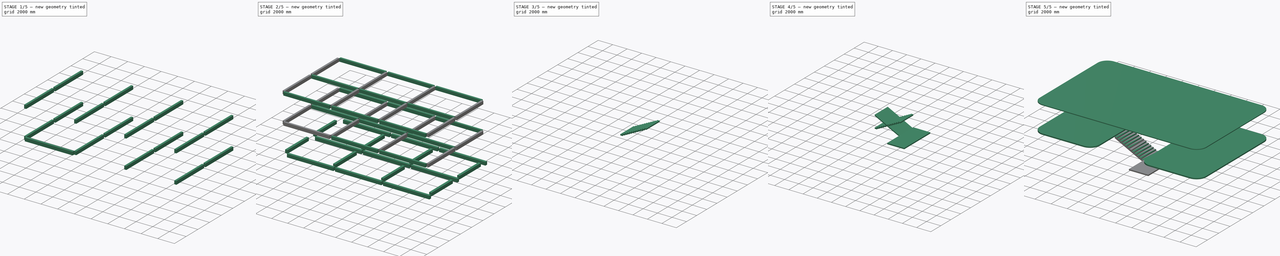
[diagram: build sequence overview — one tinted view per stage of 5, left to right]
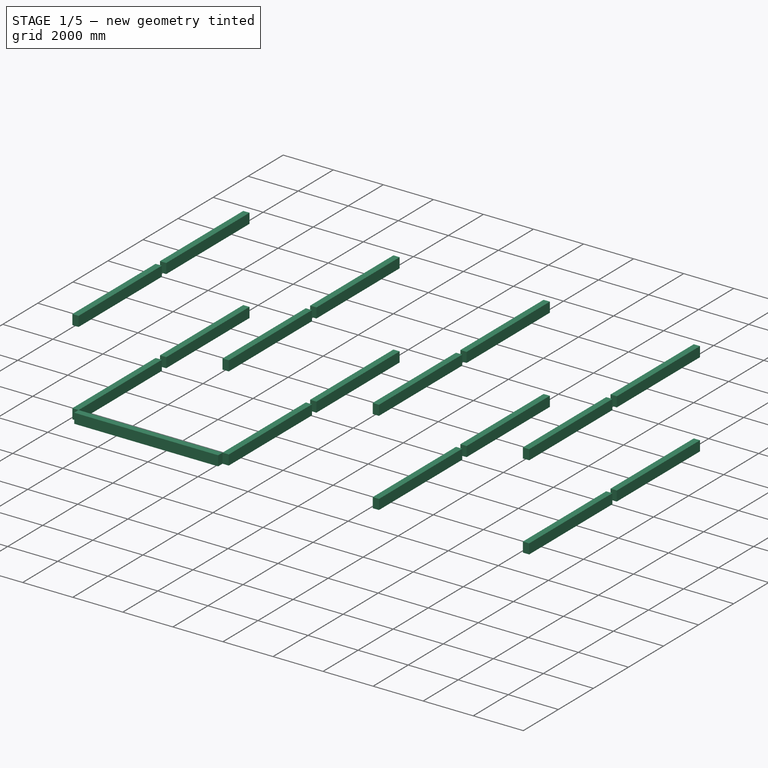
[diagram: stage 1 of 5 — iso view after this stage's code; geometry added in this stage tinted green]
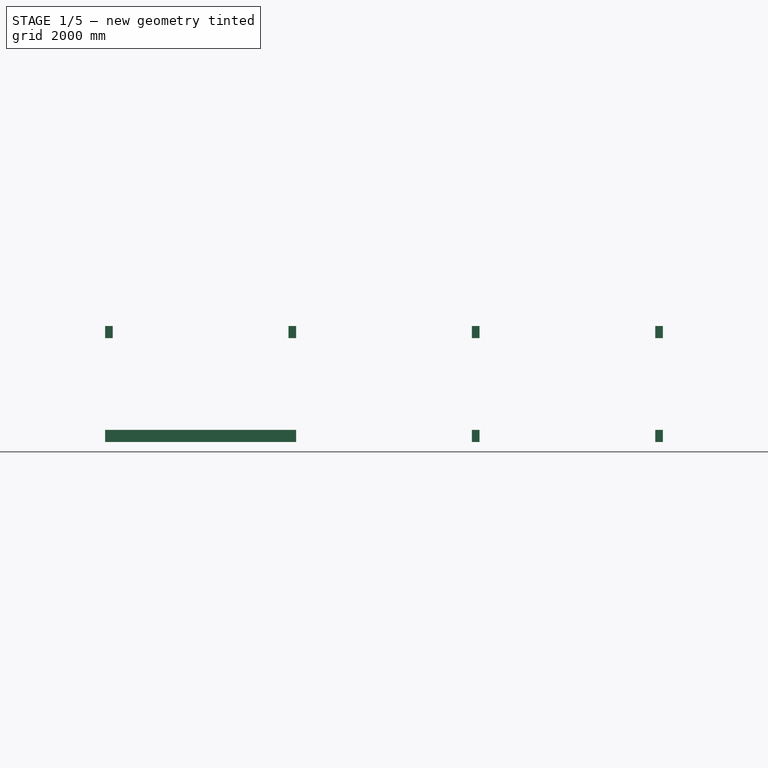
[diagram: stage 1 of 5 — front view after this stage's code; geometry added in this stage tinted green]
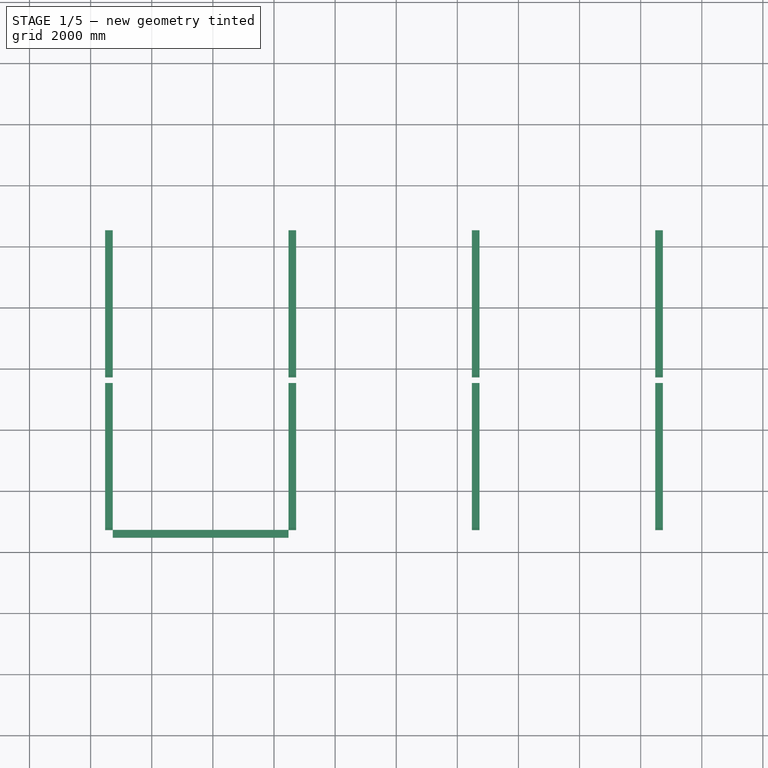
[diagram: stage 1 of 5 — top view after this stage's code; geometry added in this stage tinted green]
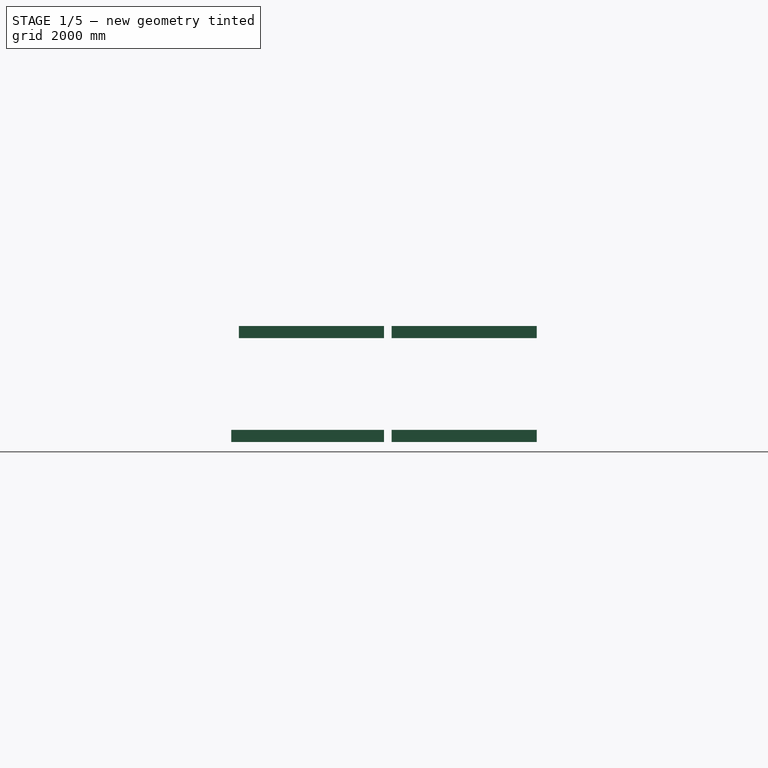
[diagram: stage 1 of 5 — right view after this stage's code; geometry added in this stage tinted green]
FCSTD DOCUMENT  (FreeCAD 0.16R6712 (Git))
Label: DOMINO_HOUSE_03
License: All rights reserved
LicenseURL: http://en.wikipedia.org/wiki/All_rights_reserved
objects: Sketcher::SketchObject×11, Part::Extrusion×11, Part::FeaturePython×7, Part::Mirroring×4, PartDesign::Fillet×2, Part::MultiFuse×1
note: 36 computed .brp shape members not serialized (recipe doc carries the construction recipe); baked Part::Feature solids carry a one-line shape summary decoded from their .brp

FEATURE [Sketcher::SketchObject] Sketch  label="BLOCO"
  sketch-geometry (4):
    g0: LineSegment StartX=0 StartY=0 StartZ=0 EndX=1200 EndY=0 EndZ=0
    g1: LineSegment StartX=1200 StartY=0 StartZ=0 EndX=1200 EndY=1200 EndZ=0
    g2: LineSegment StartX=1200 StartY=1200 StartZ=0 EndX=0 EndY=1200 EndZ=0
    g3: LineSegment StartX=0 StartY=1200 StartZ=0 EndX=0 EndY=0 EndZ=0
  constraints (11):
    c: Coincident(g0,g1)
    c: Coincident(g1,g2)
    c: Coincident(g2,g3)
    c: Coincident(g3,g0)
    c: Horizontal(g0)
    c: Horizontal(g2)
    c: Vertical(g1)
    c: Vertical(g3)
    c: Coincident(g0,g-1)
    c: Equal(g3,g0)
    c: Distance(g0) = 1200
FEATURE [Part::Extrusion] Extrude_Sketch  label="BLOCO_Extrude"
  Base = -> Sketch
  Dir = (0,0,400)
  Solid = true
FEATURE [Sketcher::SketchObject] Sketch001  label="PILAR"
  ExternalGeometry = -> [Extrude_Sketch]
  Placement = pos=(0,0,400) rot=(0,0,1;0rad)
  Support = -> Extrude_Sketch [Face6]
  sketch-geometry (6):
    g0: LineSegment StartX=475 StartY=725 StartZ=0 EndX=725 EndY=725 EndZ=0
    g1: LineSegment StartX=725 StartY=725 StartZ=0 EndX=725 EndY=475 EndZ=0
    g2: LineSegment StartX=725 StartY=475 StartZ=0 EndX=475 EndY=475 EndZ=0
    g3: LineSegment StartX=475 StartY=475 StartZ=0 EndX=475 EndY=725 EndZ=0
    g4: Circle [constr] CenterX=600 CenterY=600 CenterZ=0 NormalX=0 NormalY=0 NormalZ=1 Radius=125
    g5: Circle [constr] CenterX=600 CenterY=600 CenterZ=0 NormalX=0 NormalY=0 NormalZ=1 Radius=600
  constraints (17):
    c: Coincident(g0,g1)
    c: Coincident(g1,g2)
    c: Coincident(g2,g3)
    c: Coincident(g3,g0)
    c: Horizontal(g0)
    c: Horizontal(g2)
    c: Vertical(g1)
    c: Vertical(g3)
    c: Equal(g2,g3)
    c: Distance(g2) = 250
    c: Coincident(g4,g5)
    c: Tangent(g4,g3)
    c: Tangent(g4,g2)
    c: Tangent(g4,g0)
    c: Tangent(g5,g-3)
    c: Tangent(g5,g-4)
    c: Tangent(g5,g-5)
FEATURE [Part::Extrusion] Extrude_Sketch001  label="PILAR_Extrude"
  Base = -> Sketch001
  Dir = (0,0,6850)
  Solid = true
FEATURE [Part::Extrusion] Extrude_Sketch003  label="VIGA-X_Extrude"
  Base = -> Sketch003
  Dir = (5750,0,0)
  Solid = true
FEATURE [Part::Extrusion] Extrude_Sketch004  label="VIGA-Y_Extrude"
  Base = -> Sketch004
  Dir = (0,4750,0)
  Solid = true
FEATURE [Part::FeaturePython] Array005  label="VIGA-Y001"  # Draft array (typed FeaturePython)
  Angle = 360
  ArrayType = 0
  Axis = (0,0,1)
  Base = -> Extrude_Sketch004
  Center = (0,0,0)
  Fuse = false
  IntervalAxis = (0,0,0)
  IntervalX = (6000,0,0)
  IntervalY = (0,5000,0)
  IntervalZ = (0,0,3400)
  NumberPolar = 1
  NumberX = 4
  NumberY = 2
  NumberZ = 2
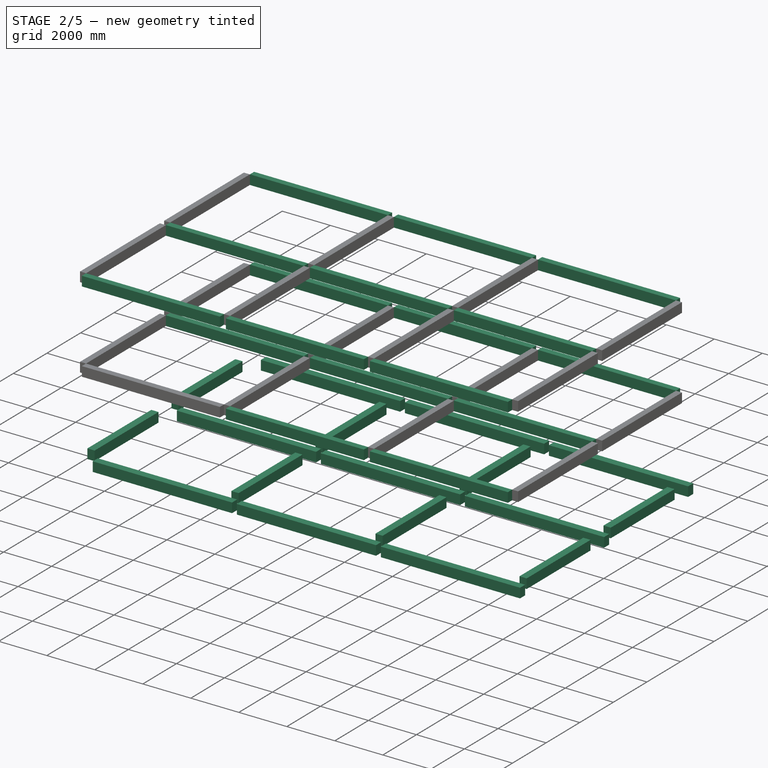
[diagram: stage 2 of 5 — iso view after this stage's code; geometry added in this stage tinted green]
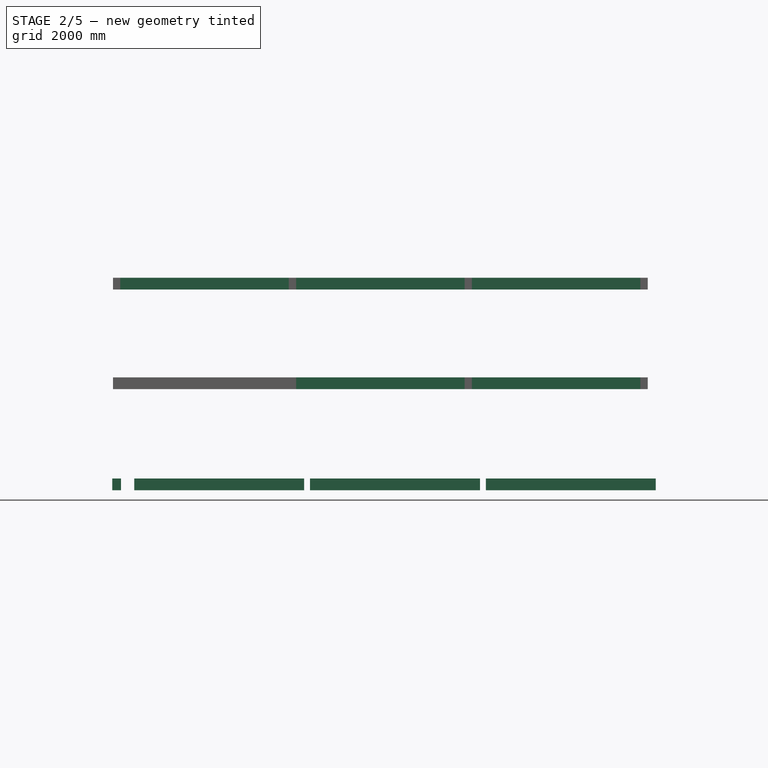
[diagram: stage 2 of 5 — front view after this stage's code; geometry added in this stage tinted green]
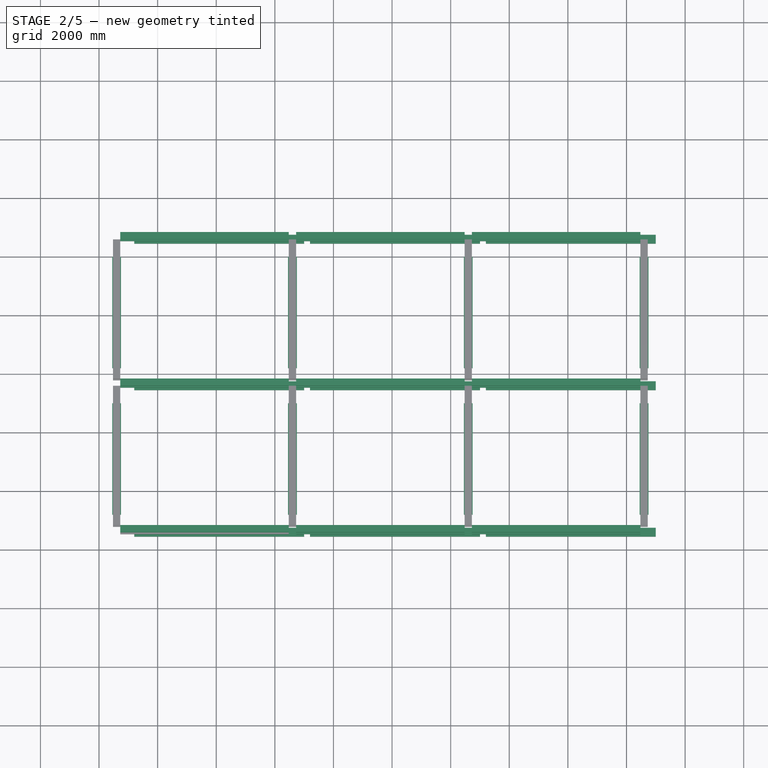
[diagram: stage 2 of 5 — top view after this stage's code; geometry added in this stage tinted green]
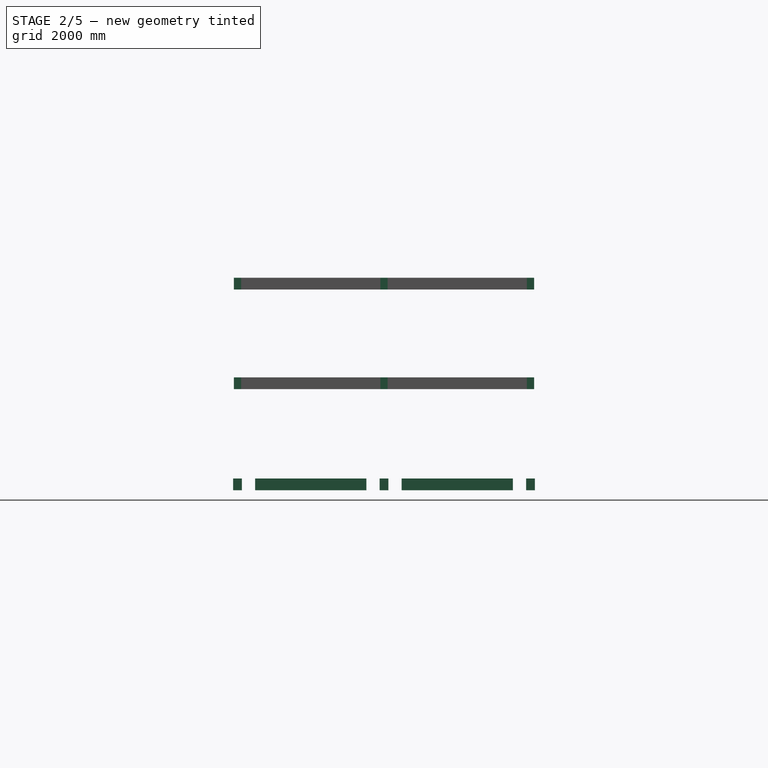
[diagram: stage 2 of 5 — right view after this stage's code; geometry added in this stage tinted green]
FEATURE [Sketcher::SketchObject] Sketch004  label="VIGA-Y"
  ExternalGeometry = -> [Extrude_Sketch001]
  Placement = pos=(0,725,0) rot=(0,0.707107,0.707107;3.14159rad)
  Support = -> Extrude_Sketch001 [Face1]
  sketch-geometry (5):
    g0: LineSegment StartX=-725 StartY=3850 StartZ=0 EndX=-475 EndY=3850 EndZ=0
    g1: LineSegment StartX=-475 StartY=3850 StartZ=0 EndX=-475 EndY=3450 EndZ=0
    g2: LineSegment StartX=-475 StartY=3450 StartZ=0 EndX=-725 EndY=3450 EndZ=0
    g3: LineSegment StartX=-725 StartY=3450 StartZ=0 EndX=-725 EndY=3850 EndZ=0
    g4: LineSegment [constr] StartX=-600 StartY=3450 StartZ=0 EndX=-600 EndY=400 EndZ=0
  constraints (14):
    c: Coincident(g0,g1)
    c: Coincident(g1,g2)
    c: Coincident(g2,g3)
    c: Coincident(g3,g0)
    c: Horizontal(g0)
    c: Horizontal(g2)
    c: Vertical(g1)
    c: Vertical(g3)
    c: Vertical(g4)
    c: Symmetric(g2,g2,g4)
    c: Symmetric(g-3,g-3,g4)
    c: Distance(g4) = 3050
    c: Equal(g0,g-4)
    c: Distance(g3) = 400
FEATURE [Sketcher::SketchObject] Sketch005  label="BALDRAME-Y"
  ExternalGeometry = -> [Extrude_Sketch]
  Placement = pos=(0,1200,0) rot=(0,0.707107,0.707107;3.14159rad)
  Support = -> Extrude_Sketch [Face3]
  sketch-geometry (6):
    g0: LineSegment StartX=-750 StartY=400 StartZ=0 EndX=-450 EndY=400 EndZ=0
    g1: LineSegment StartX=-450 StartY=400 StartZ=0 EndX=-450 EndY=0 EndZ=0
    g2: LineSegment StartX=-450 StartY=0 StartZ=0 EndX=-750 EndY=0 EndZ=0
    g3: LineSegment StartX=-750 StartY=0 StartZ=0 EndX=-750 EndY=400 EndZ=0
    g4: LineSegment [constr] StartX=-1200 StartY=200 StartZ=0 EndX=-750 EndY=200 EndZ=0
    g5: LineSegment [constr] StartX=-450 StartY=200 StartZ=0 EndX=0 EndY=200 EndZ=0
  constraints (17):
    c: Coincident(g0,g1)
    c: Coincident(g1,g2)
    c: Coincident(g2,g3)
    c: Coincident(g3,g0)
    c: Horizontal(g0)
    c: Horizontal(g2)
    c: Vertical(g1)
    c: Vertical(g3)
    c: Horizontal(g4)
    c: Horizontal(g5)
    c: Equal(g5,g4)
    c: Symmetric(g3,g3,g4)
    c: Symmetric(g1,g1,g5)
    c: Symmetric(g-6,g-6,g5)
    c: Distance(g0,g0) = 300
    c: Symmetric(g-4,g-4,g4)
    c: Equal(g-4,g3)
FEATURE [Part::Extrusion] Extrude_Sketch002  label="BALDRAME-X_Extrude"
  Base = -> Sketch002
  Dir = (5800,0,0)
  Solid = true
FEATURE [Part::Extrusion] Extrude_Sketch005  label="BALDRAME-Y_Extrude"
  Base = -> Sketch005
  Dir = (0,3800,0)
  Solid = true
FEATURE [Part::FeaturePython] Array002  label="BALDRAME-X001"  # Draft array (typed FeaturePython)
  Angle = 360
  ArrayType = 0
  Axis = (0,0,1)
  Base = -> Extrude_Sketch002
  Center = (0,0,0)
  Fuse = true
  IntervalAxis = (0,0,0)
  IntervalX = (6000,0,0)
  IntervalY = (0,5000,0)
  IntervalZ = (0,0,0)
  NumberPolar = 1
  NumberX = 3
  NumberY = 3
  NumberZ = 1
FEATURE [Part::FeaturePython] Array003  label="BALDRAME-Y001"  # Draft array (typed FeaturePython)
  Angle = 360
  ArrayType = 0
  Axis = (0,0,1)
  Base = -> Extrude_Sketch005
  Center = (0,0,0)
  Fuse = true
  IntervalAxis = (0,0,0)
  IntervalX = (6000,0,0)
  IntervalY = (0,5000,0)
  IntervalZ = (0,0,0)
  NumberPolar = 1
  NumberX = 4
  NumberY = 2
  NumberZ = 1
FEATURE [Part::FeaturePython] Array004  label="VIGA-X001"  # Draft array (typed FeaturePython)
  Angle = 360
  ArrayType = 0
  Axis = (0,0,1)
  Base = -> Extrude_Sketch003
  Center = (0,0,0)
  Fuse = false
  IntervalAxis = (0,0,0)
  IntervalX = (6000,0,0)
  IntervalY = (0,5000,0)
  IntervalZ = (0,0,3400)
  NumberPolar = 1
  NumberX = 3
  NumberY = 3
  NumberZ = 2
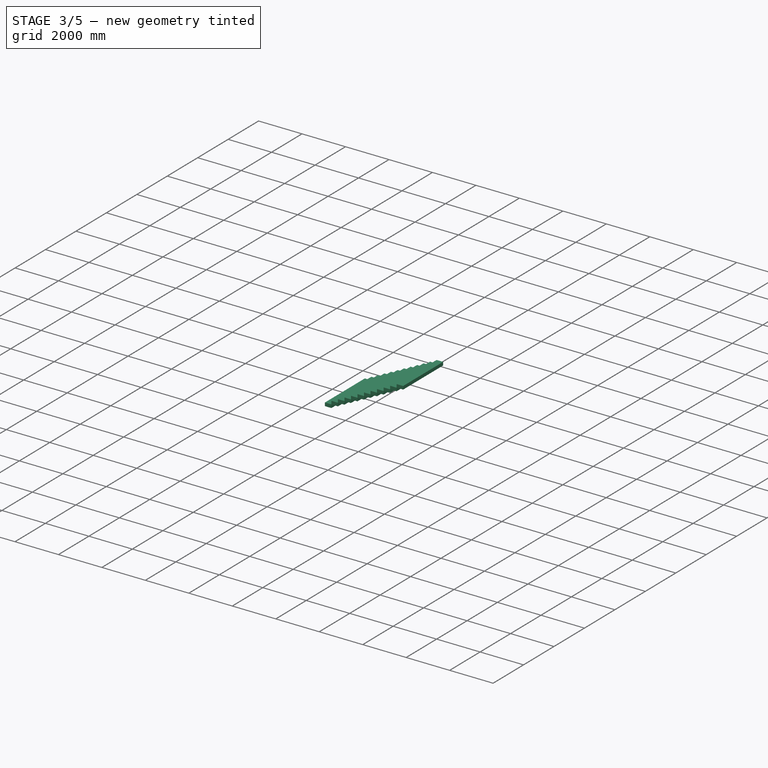
[diagram: stage 3 of 5 — iso view after this stage's code; geometry added in this stage tinted green]
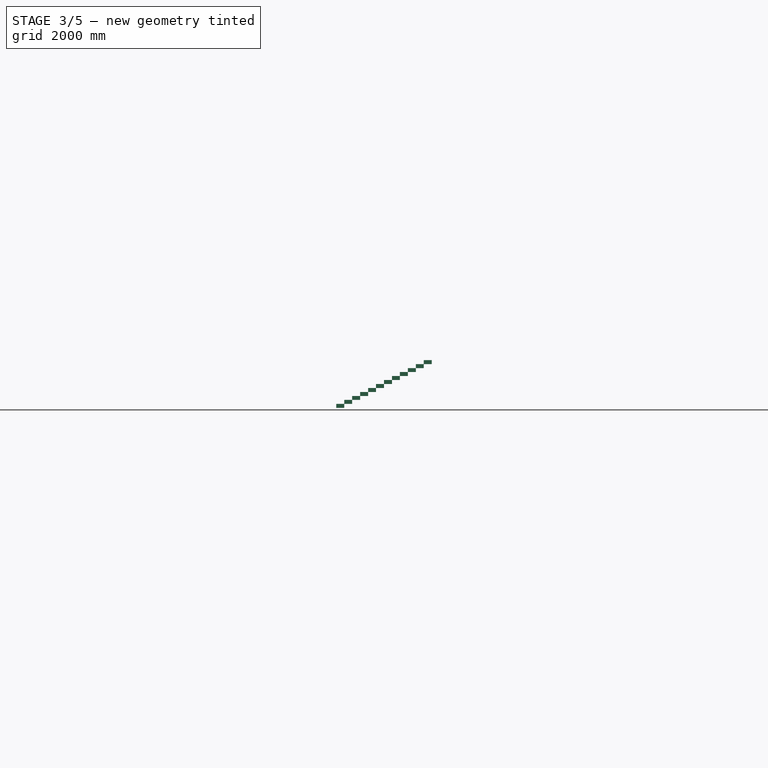
[diagram: stage 3 of 5 — front view after this stage's code; geometry added in this stage tinted green]
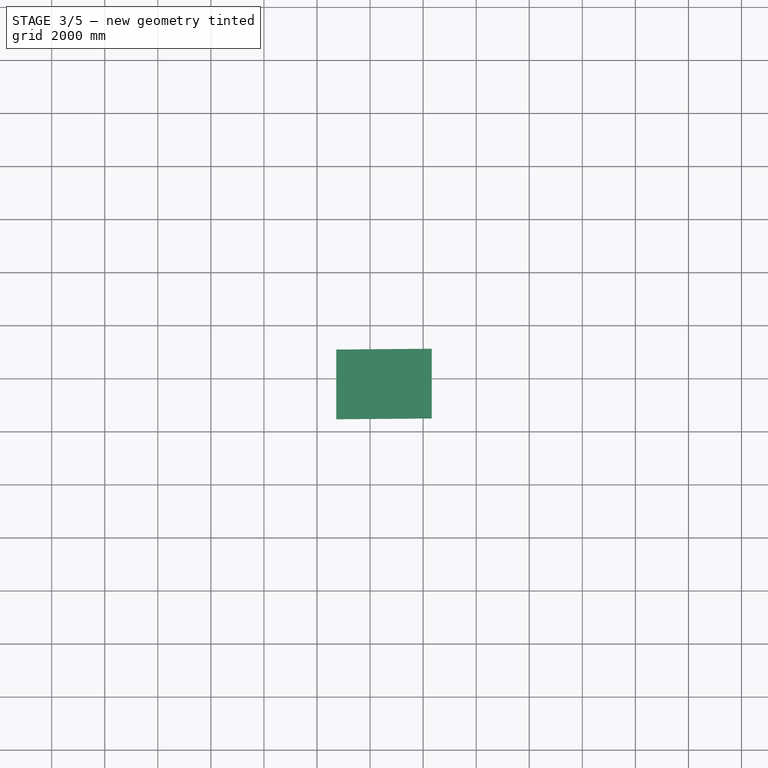
[diagram: stage 3 of 5 — top view after this stage's code; geometry added in this stage tinted green]
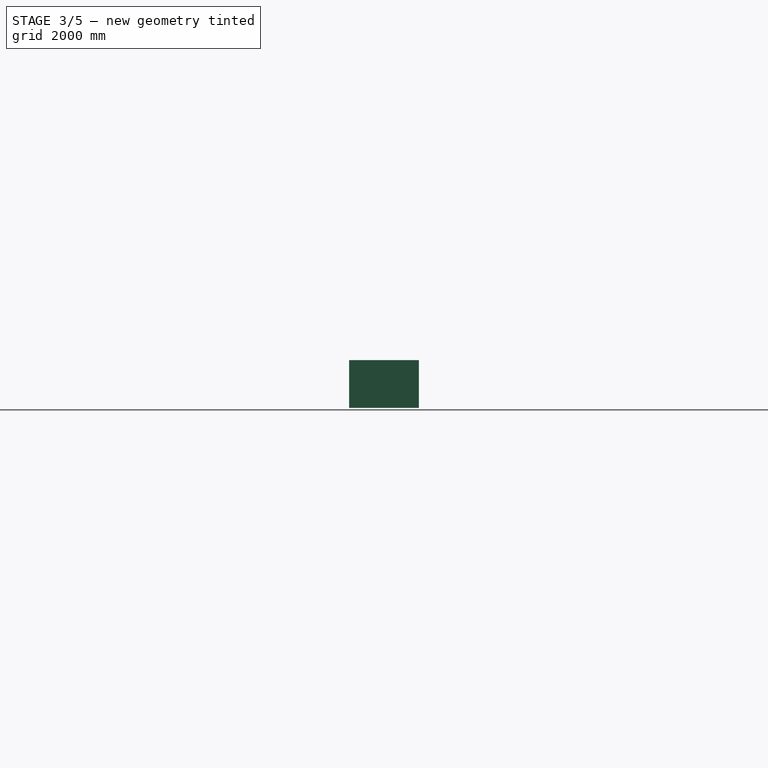
[diagram: stage 3 of 5 — right view after this stage's code; geometry added in this stage tinted green]
FEATURE [Sketcher::SketchObject] Sketch002  label="BALDRAME-X"
  ExternalGeometry = -> [Extrude_Sketch]
  Placement = pos=(1200,0,0) rot=(0.57735,0.57735,0.57735;2.0944rad)
  Support = -> Extrude_Sketch [Face2]
  sketch-geometry (6):
    g0: LineSegment StartX=450 StartY=400 StartZ=0 EndX=750 EndY=400 EndZ=0
    g1: LineSegment StartX=750 StartY=400 StartZ=0 EndX=750 EndY=0 EndZ=0
    g2: LineSegment StartX=750 StartY=0 StartZ=0 EndX=450 EndY=0 EndZ=0
    g3: LineSegment StartX=450 StartY=0 StartZ=0 EndX=450 EndY=400 EndZ=0
    g4: LineSegment [constr] StartX=0 StartY=200 StartZ=0 EndX=450 EndY=200 EndZ=0
    g5: LineSegment [constr] StartX=750 StartY=200 StartZ=0 EndX=1200 EndY=200 EndZ=0
  constraints (16):
    c: Coincident(g0,g1)
    c: Coincident(g1,g2)
    c: Coincident(g2,g3)
    c: Coincident(g3,g0)
    c: Horizontal(g0)
    c: Horizontal(g2)
    c: Vertical(g1)
    c: Vertical(g3)
    c: Distance(g0) = 300
    c: Equal(g-4,g3)
    c: Equal(g5,g4)
    c: Symmetric(g-4,g-4,g4)
    c: Symmetric(g3,g3,g4)
    c: Symmetric(g1,g1,g5)
    c: Symmetric(g-6,g-6,g5)
    c: Horizontal(g4)
FEATURE [Sketcher::SketchObject] Sketch003  label="VIGA-X"
  ExternalGeometry = -> [Extrude_Sketch001]
  Placement = pos=(725,0,0) rot=(0.57735,0.57735,0.57735;2.0944rad)
  Support = -> Extrude_Sketch001 [Face2]
  sketch-geometry (5):
    g0: LineSegment StartX=475 StartY=3850 StartZ=0 EndX=725 EndY=3850 EndZ=0
    g1: LineSegment StartX=725 StartY=3850 StartZ=0 EndX=725 EndY=3450 EndZ=0
    g2: LineSegment StartX=725 StartY=3450 StartZ=0 EndX=475 EndY=3450 EndZ=0
    g3: LineSegment StartX=475 StartY=3450 StartZ=0 EndX=475 EndY=3850 EndZ=0
    g4: LineSegment [constr] StartX=600 StartY=3450 StartZ=0 EndX=600 EndY=400 EndZ=0
  constraints (14):
    c: Coincident(g0,g1)
    c: Coincident(g1,g2)
    c: Coincident(g2,g3)
    c: Coincident(g3,g0)
    c: Horizontal(g0)
    c: Horizontal(g2)
    c: Vertical(g1)
    c: Vertical(g3)
    c: Equal(g0,g-3)
    c: Vertical(g4)
    c: Symmetric(g-4,g-4,g4)
    c: Symmetric(g2,g2,g4)
    c: Distance(g4) = 3050
    c: Distance(g3) = 400
FEATURE [Part::FeaturePython] Array  label="BLOCO001"  # Draft array (typed FeaturePython)
  Angle = 360
  ArrayType = 0
  Axis = (0,0,1)
  Base = -> Extrude_Sketch
  Center = (0,0,0)
  Fuse = true
  IntervalAxis = (0,0,0)
  IntervalX = (6000,0,0)
  IntervalY = (0,5000,0)
  IntervalZ = (0,0,0)
  NumberPolar = 1
  NumberX = 4
  NumberY = 3
  NumberZ = 1
FEATURE [Part::FeaturePython] Array001  label="PILAR001"  # Draft array (typed FeaturePython)
  Angle = 360
  ArrayType = 0
  Axis = (0,0,1)
  Base = -> Extrude_Sketch001
  Center = (0,0,0)
  Fuse = true
  IntervalAxis = (0,0,0)
  IntervalX = (6000,0,0)
  IntervalY = (0,5000,0)
  IntervalZ = (0,0,0)
  NumberPolar = 1
  NumberX = 4
  NumberY = 3
  NumberZ = 1
FEATURE [Part::MultiFuse] Fusion  label="ESTRUTURA"
  Shapes = -> [Array,Array005,Array004,Array002,Array001,Array003]
FEATURE [Sketcher::SketchObject] Sketch008  label="DEGRAU"
  ExternalGeometry = -> [Fusion]
  Placement = pos=(0,475,0) rot=(1,0,0;1.5708rad)
  Support = -> Fusion [Face289]
  sketch-geometry (4):
    g0: LineSegment StartX=6725 StartY=400 StartZ=0 EndX=7025 EndY=400 EndZ=0
    g1: LineSegment StartX=7025 StartY=400 StartZ=0 EndX=7025 EndY=550 EndZ=0
    g2: LineSegment StartX=7025 StartY=550 StartZ=0 EndX=6725 EndY=550 EndZ=0
    g3: LineSegment StartX=6725 StartY=550 StartZ=0 EndX=6725 EndY=400 EndZ=0
  constraints (11):
    c: Coincident(g0,g1)
    c: Coincident(g1,g2)
    c: Coincident(g2,g3)
    c: Coincident(g3,g0)
    c: Horizontal(g0)
    c: Horizontal(g2)
    c: Vertical(g1)
    c: Vertical(g3)
    c: Distance(g3) = 150
    c: Distance(g2) = 300
    c: Coincident(g0,g-3)
FEATURE [Part::Extrusion] Extrude_Sketch008  label="DEGRAU001"
  Base = -> Sketch008
  Dir = (0,2625,0)
  Solid = true
FEATURE [Part::FeaturePython] Array006  label="ESCADA"  # Draft array (typed FeaturePython)
  Angle = 360
  ArrayType = 0
  Axis = (0,0,1)
  Base = -> Extrude_Sketch008
  Center = (0,0,0)
  Fuse = true
  IntervalAxis = (0,0,0)
  IntervalX = (300,0,150)
  IntervalY = (0,1,0)
  IntervalZ = (0,0,0)
  NumberPolar = 1
  NumberX = 12
  NumberY = 2
  NumberZ = 1
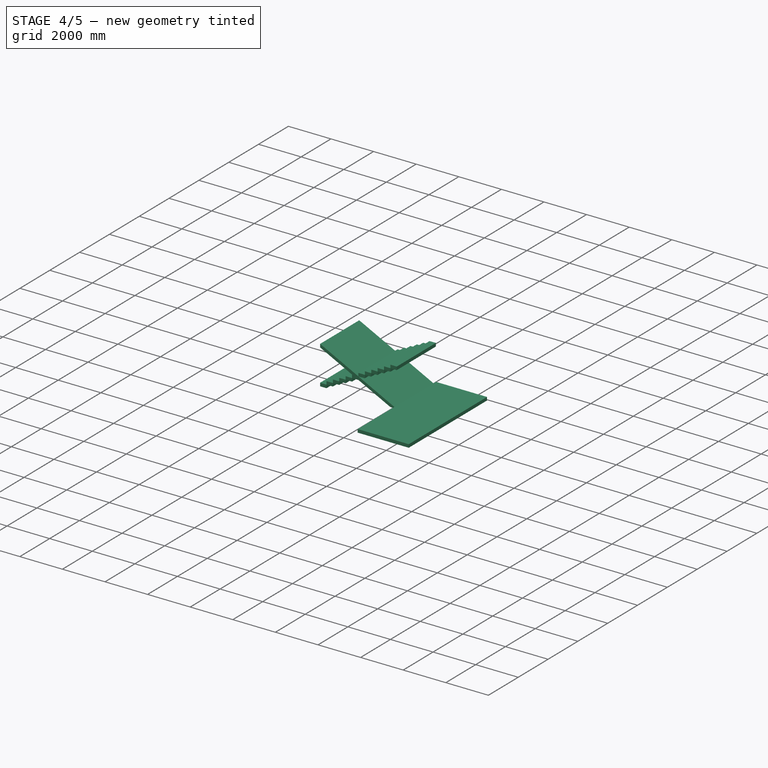
[diagram: stage 4 of 5 — iso view after this stage's code; geometry added in this stage tinted green]
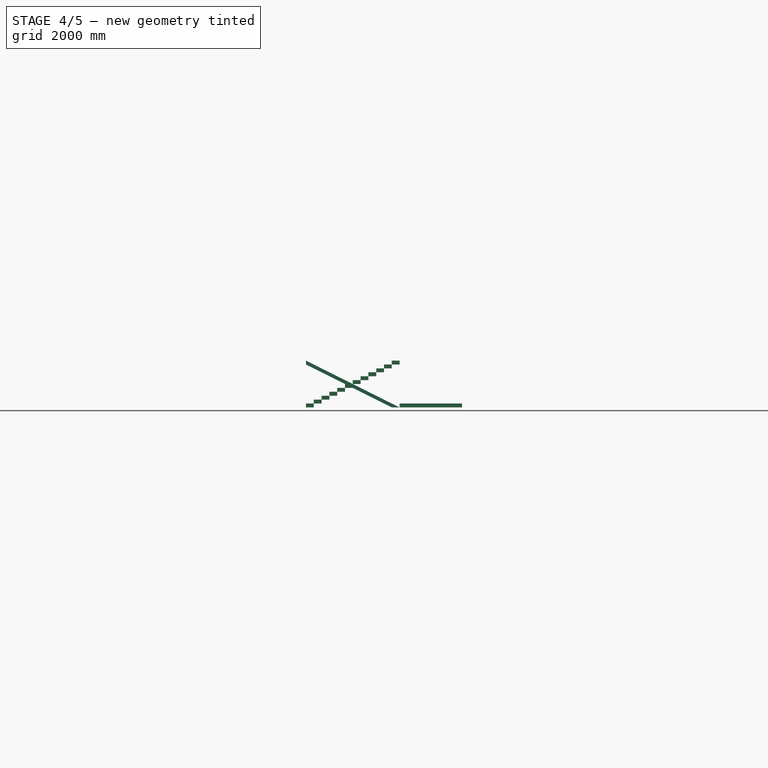
[diagram: stage 4 of 5 — front view after this stage's code; geometry added in this stage tinted green]
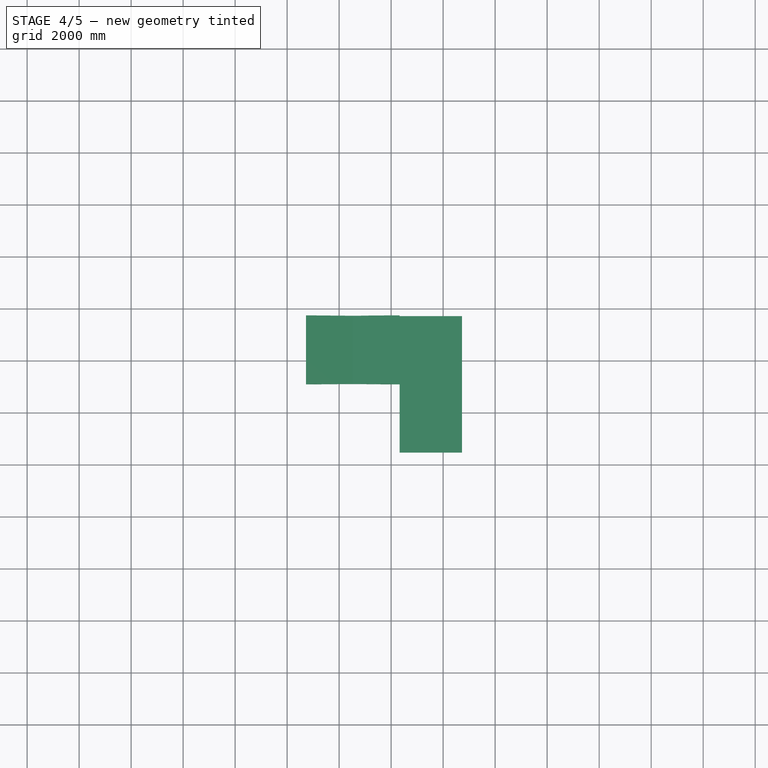
[diagram: stage 4 of 5 — top view after this stage's code; geometry added in this stage tinted green]
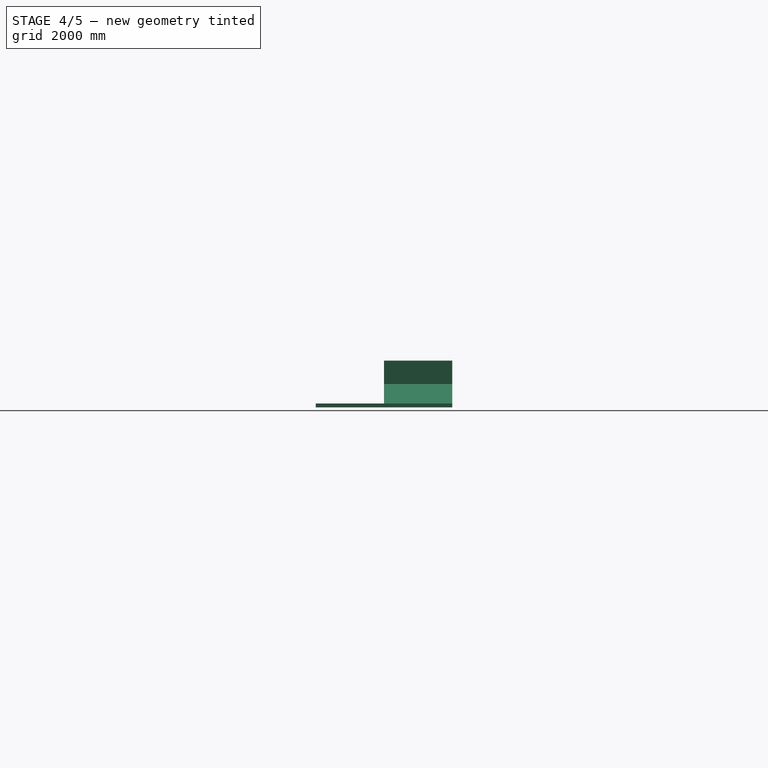
[diagram: stage 4 of 5 — right view after this stage's code; geometry added in this stage tinted green]
FEATURE [Part::Mirroring] Part__Mirroring  label="ESCADA (Mirror #1)"
  Base = (0,3100,0)
  Normal = (0,1,0)
  Placement = pos=(0,0,1650) rot=(0,0,1;0rad)
  Source = -> Array006
FEATURE [Sketcher::SketchObject] Sketch009  label="PATAMAR"
  Placement = pos=(0,0,2200) rot=(0,0,1;0rad)
  Support = -> Array006 [Face6]
  sketch-geometry (4):
    g0: LineSegment StartX=10325 StartY=475 StartZ=0 EndX=12725 EndY=475 EndZ=0
    g1: LineSegment StartX=12725 StartY=475 StartZ=0 EndX=12725 EndY=5725 EndZ=0
    g2: LineSegment StartX=12725 StartY=5725 StartZ=0 EndX=10325 EndY=5725 EndZ=0
    g3: LineSegment StartX=10325 StartY=5725 StartZ=0 EndX=10325 EndY=475 EndZ=0
  constraints (8):
    c: Coincident(g0,g1)
    c: Coincident(g1,g2)
    c: Coincident(g2,g3)
    c: Coincident(g3,g0)
    c: Horizontal(g0)
    c: Horizontal(g2)
    c: Vertical(g1)
    c: Vertical(g3)
FEATURE [Part::Extrusion] Extrude_Sketch009  label="PATAMAR001"
  Base = -> Sketch009
  Dir = (0,0,-150)
  Solid = true
FEATURE [Sketcher::SketchObject] Sketch010  label="RAMPA"
  Placement = pos=(0,475,0) rot=(1,0,0;1.5708rad)
  Support = -> Array006 [Face13]
  sketch-geometry (4):
    g0: LineSegment StartX=6725 StartY=400 StartZ=0 EndX=10325 EndY=2200 EndZ=0
    g1: LineSegment StartX=10325 StartY=2200 StartZ=0 EndX=10325 EndY=2050 EndZ=0
    g2: LineSegment StartX=10325 StartY=2050 StartZ=0 EndX=7025 EndY=400 EndZ=0
    g3: LineSegment StartX=7025 StartY=400 StartZ=0 EndX=6725 EndY=400 EndZ=0
  constraints (6):
    c: Coincident(g0,g1)
    c: Vertical(g1)
    c: Coincident(g1,g2)
    c: Coincident(g2,g3)
    c: Horizontal(g3)
    c: Coincident(g0,g3)
FEATURE [Part::Extrusion] Extrude_Sketch010001  label="RAMPA001"
  Base = -> Sketch010
  Dir = (0,2625,0)
  Solid = true
FEATURE [Part::Mirroring] Part__Mirroring002  label="RAMPA001 (Mirror #3)"
  Base = (0,3100,0)
  Normal = (0,1,0)
  Source = -> Extrude_Sketch010001
FEATURE [Part::Mirroring] Part__Mirroring003  label="RAMPA001 (Mirror #4)"
  Base = (8525,0,0)
  Normal = (1,0,0)
  Placement = pos=(0,0,1650) rot=(0,0,1;0rad)
  Source = -> Part__Mirroring002
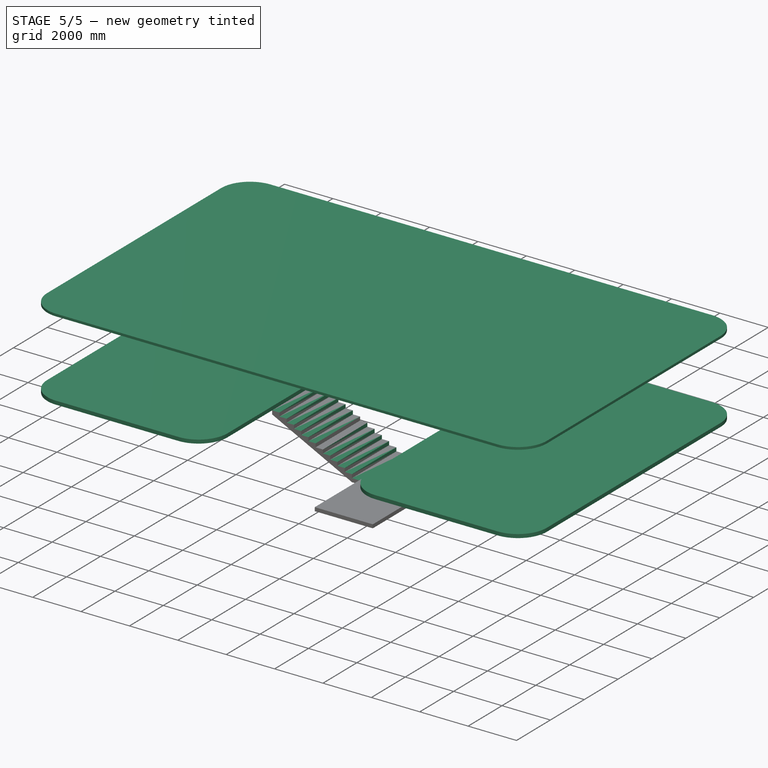
[diagram: stage 5 of 5 — iso view after this stage's code; geometry added in this stage tinted green]
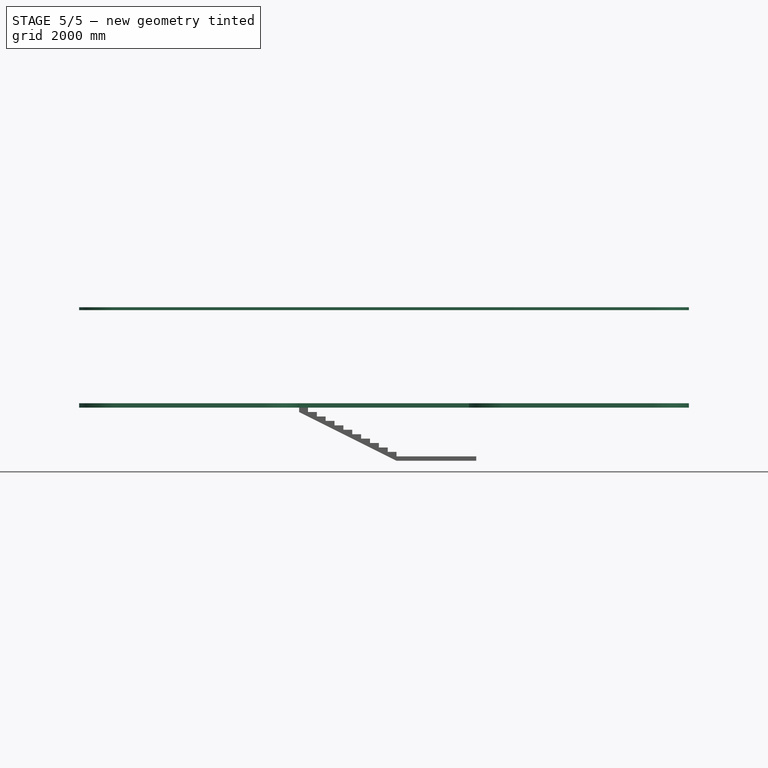
[diagram: stage 5 of 5 — front view after this stage's code; geometry added in this stage tinted green]
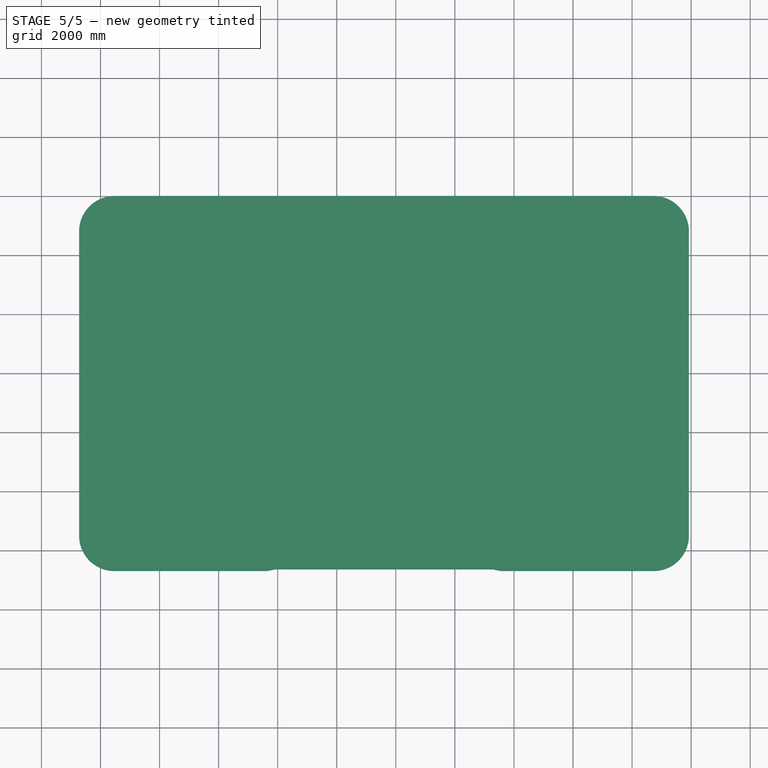
[diagram: stage 5 of 5 — top view after this stage's code; geometry added in this stage tinted green]
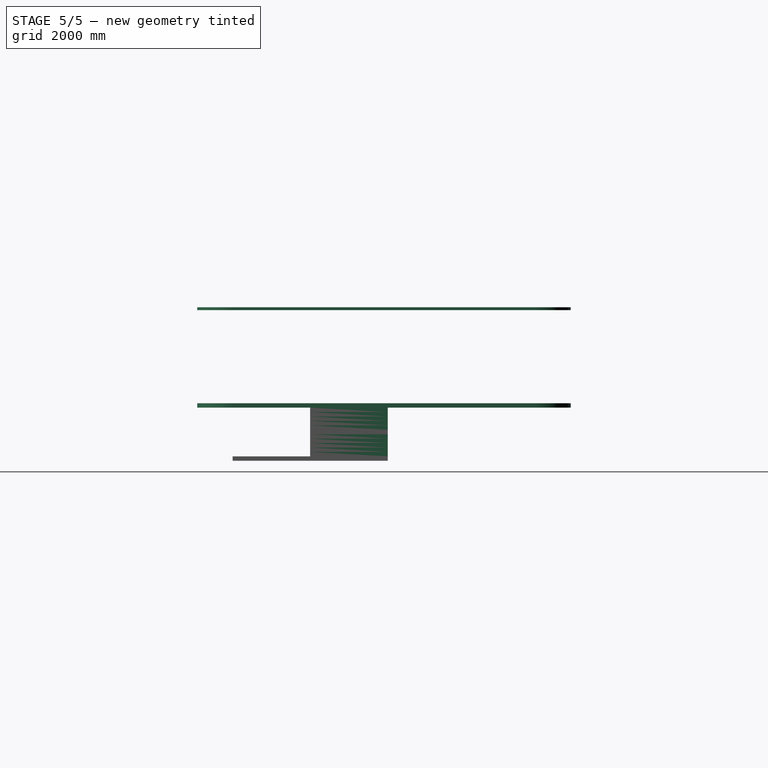
[diagram: stage 5 of 5 — right view after this stage's code; geometry added in this stage tinted green]
FEATURE [Sketcher::SketchObject] Sketch006  label="LAJE"
  ExternalGeometry = -> [Fusion]
  Placement = pos=(0,0,3850) rot=(0,0,1;0rad)
  Support = -> Fusion [Face248]
  sketch-geometry (8):
    g0: LineSegment StartX=-725 StartY=-725 StartZ=0 EndX=6725 EndY=-725 EndZ=0
    g1: LineSegment StartX=19925 StartY=-725 StartZ=0 EndX=19925 EndY=11925 EndZ=0
    g2: LineSegment StartX=19925 StartY=11925 StartZ=0 EndX=-725 EndY=11925 EndZ=0
    g3: LineSegment StartX=-725 StartY=11925 StartZ=0 EndX=-725 EndY=-725 EndZ=0
    g4: LineSegment StartX=12475 StartY=-725 StartZ=0 EndX=12475 EndY=5475 EndZ=0
    g5: LineSegment StartX=12475 StartY=5475 StartZ=0 EndX=6725 EndY=5475 EndZ=0
    g6: LineSegment StartX=6725 StartY=5475 StartZ=0 EndX=6725 EndY=-725 EndZ=0
    g7: LineSegment StartX=12475 StartY=-725 StartZ=0 EndX=19925 EndY=-725 EndZ=0
  constraints (22):
    c: Coincident(g7,g1)
    c: Coincident(g1,g2)
    c: Coincident(g2,g3)
    c: Coincident(g3,g0)
    c: Horizontal(g0)
    c: Horizontal(g2)
    c: Vertical(g1)
    c: Vertical(g3)
    c: DistanceY(g0,g-6) = 1200
    c: DistanceX(g0,g-6) = 1200
    c: DistanceX(g-4,g1) = 1200
    c: DistanceY(g-4,g1) = 1200
    c: Coincident(g4,g5)
    c: Coincident(g5,g6)
    c: Horizontal(g5)
    c: Vertical(g4)
    c: Vertical(g6)
    c: Tangent(g0,g7)
    c: Coincident(g6,g0)
    c: Coincident(g4,g7)
    c: Coincident(g5,g-8)
    c: Coincident(g4,g-7)
FEATURE [Part::Extrusion] Extrude_Sketch006  label="LAJE_Extrude"
  Base = -> Sketch006
  Dir = (0,0,150)
  Solid = true
FEATURE [PartDesign::Fillet] Fillet
  Base = -> Extrude_Sketch006 [Edge5,Edge2,Edge1,Edge14,Edge11,Edge8]
  Radius = 1200
FEATURE [Sketcher::SketchObject] Sketch007
  ExternalGeometry = -> [Fusion]
  Placement = pos=(0,0,7250) rot=(0,0,1;0rad)
  Support = -> Fusion [Face287]
  sketch-geometry (4):
    g0: LineSegment StartX=-725 StartY=-725 StartZ=0 EndX=19925 EndY=-725 EndZ=0
    g1: LineSegment StartX=19925 StartY=-725 StartZ=0 EndX=19925 EndY=11925 EndZ=0
    g2: LineSegment StartX=19925 StartY=11925 StartZ=0 EndX=-725 EndY=11925 EndZ=0
    g3: LineSegment StartX=-725 StartY=11925 StartZ=0 EndX=-725 EndY=-725 EndZ=0
  constraints (12):
    c: Coincident(g0,g1)
    c: Coincident(g1,g2)
    c: Coincident(g2,g3)
    c: Coincident(g3,g0)
    c: Horizontal(g0)
    c: Horizontal(g2)
    c: Vertical(g1)
    c: Vertical(g3)
    c: DistanceX(g0,g-6) = 1200
    c: DistanceY(g0,g-6) = 1200
    c: DistanceX(g-4,g1) = 1200
    c: DistanceY(g-4,g1) = 1200
FEATURE [Part::Extrusion] Extrude_Sketch007  label="Sketch007_Extrude"
  Base = -> Sketch007
  Dir = (0,0,-100)
  Solid = true
FEATURE [PartDesign::Fillet] Fillet001
  Base = -> Extrude_Sketch007 [Edge1,Edge2,Edge5,Edge8]
  Radius = 1200
FEATURE [Part::Mirroring] Part__Mirroring001  label="ESCADA (Mirror #2)"
  Base = (8525,0,0)
  Normal = (1,0,0)
  Source = -> Part__Mirroring
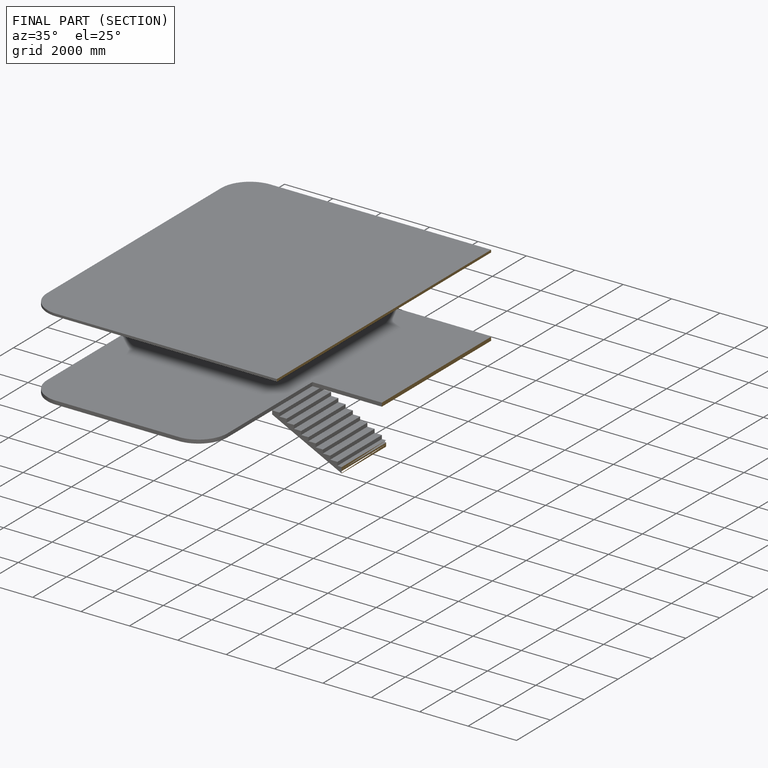
[diagram: finished part — half-section view (interior)]
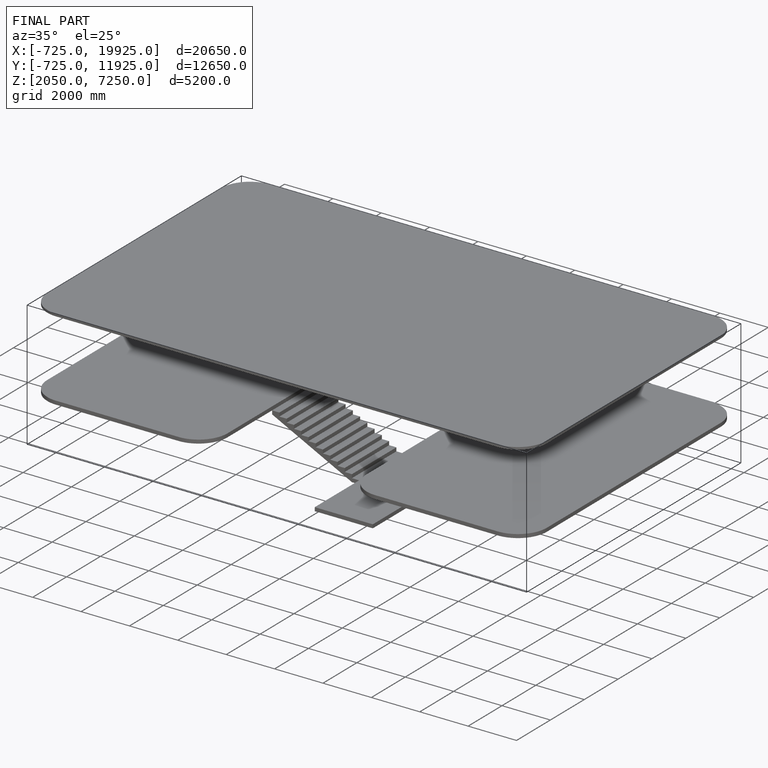
[diagram: finished part — iso view with bounding-box wireframe]
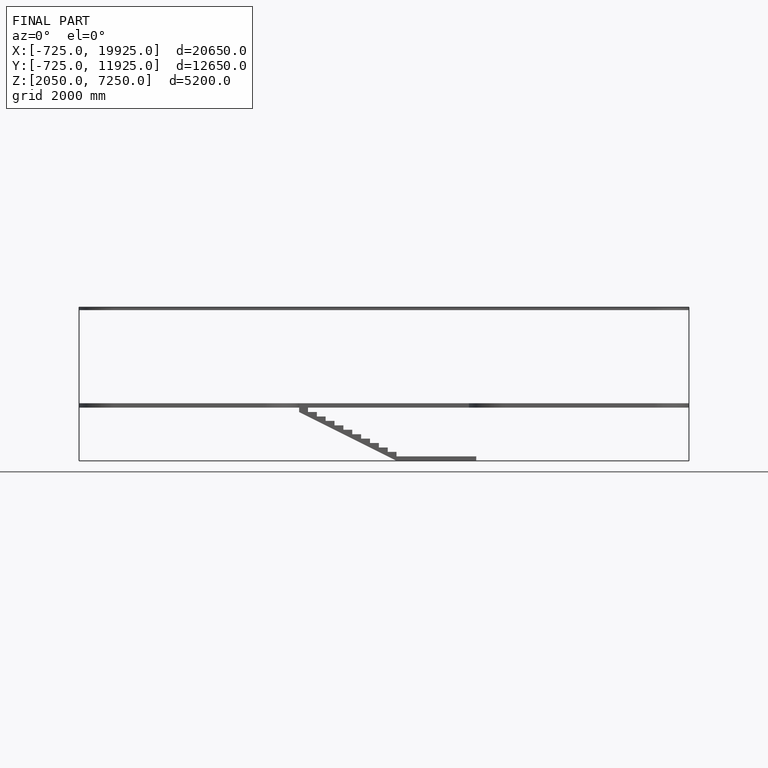
[diagram: finished part — front view with bounding-box wireframe]
